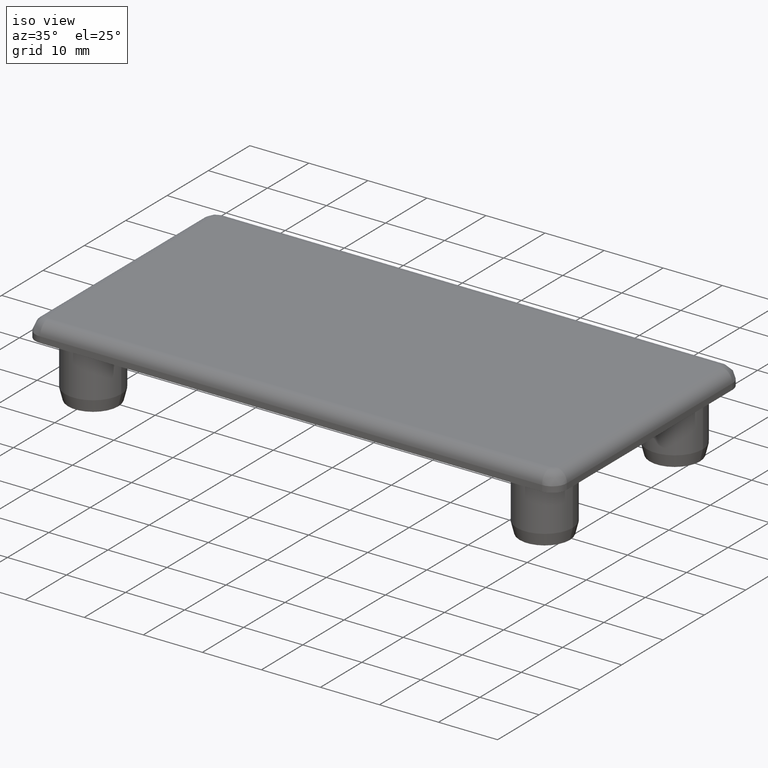
[diagram: clean part render]
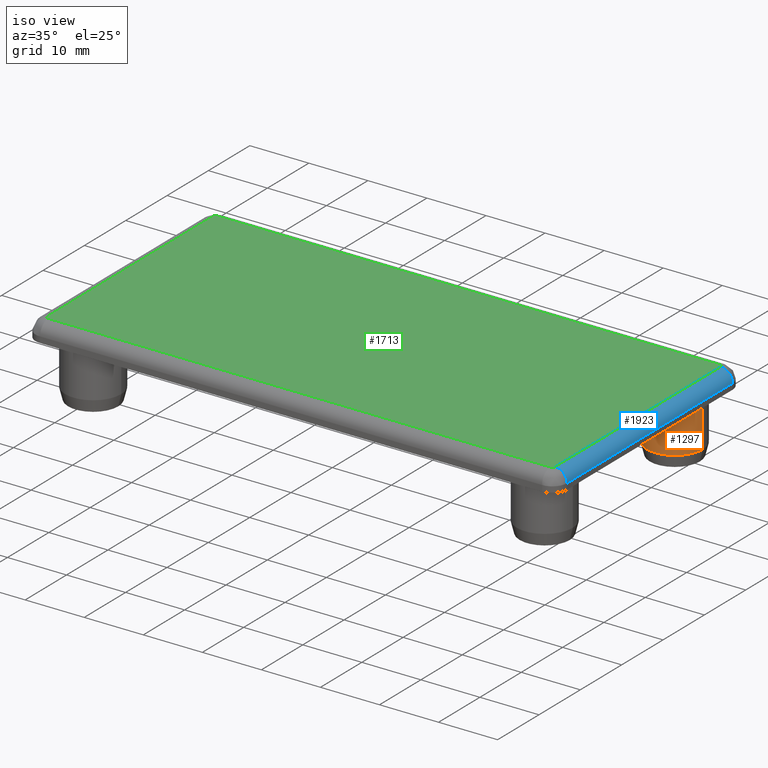
[diagram: same view with three faces highlighted in distinct colors, each labeled with its STEP entity id]
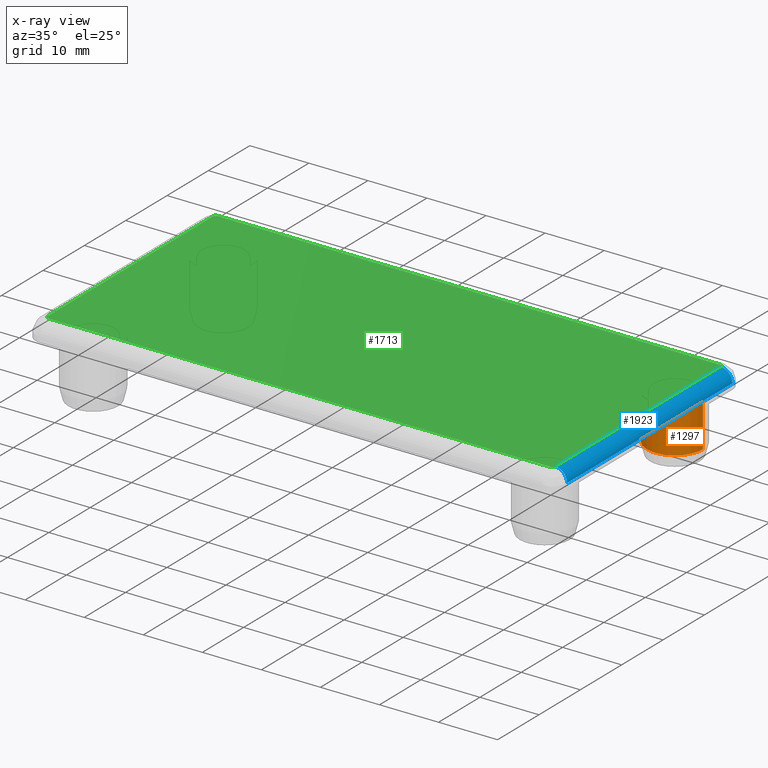
[diagram: x-ray of the same camera — body ghosted, the three highlighted faces saturated]
A machine part, iso view with three faces highlighted in distinct colors.
The next image is the same camera in x-ray (body ghosted, the three faces saturated) — at least one of them is partly hidden behind the body in this view.
Their STEP definitions:

[orange] entity #1297 — the highlighted cylindrical surface (edge-blend (fillet) strip) has radius 4.75 mm, axis along (0, 0, 1).
#753=CARTESIAN_POINT('',(33.480000000000004,38.229999999999997,-0.500000000000004));
#754=VERTEX_POINT('',#753);
#755=CARTESIAN_POINT('',(42.979999999999997,38.229999999999997,-0.500000000000004));
#756=VERTEX_POINT('',#755);
#1181=CARTESIAN_POINT('',(42.979999999999997,38.229999999999997,-8.000000000000004));
#1182=VERTEX_POINT('',#1181);
#1189=CARTESIAN_POINT('',(33.480000000000004,38.229999999999997,-8.000000000000004));
#1190=VERTEX_POINT('',#1189);
#1191=CARTESIAN_POINT('',(38.229999999999997,38.229999999999997,-8.000000000000004));
#1192=DIRECTION('',(0.0,1.224647E-016,1.0));
#1193=DIRECTION('',(1.0,0.0,0.0));
#1194=AXIS2_PLACEMENT_3D('',#1191,#1192,#1193);
#1195=CIRCLE('',#1194,4.749999999999997);
#1196=EDGE_CURVE('',#1190,#1182,#1195,.T.);
#1270=CARTESIAN_POINT('',(38.229999999999997,38.229999999999997,-8.000000010000004));
#1271=DIRECTION('',(0.0,1.224647E-016,1.0));
#1272=DIRECTION('',(0.0,1.0,-1.224647E-016));
#1273=AXIS2_PLACEMENT_3D('',#1270,#1271,#1272);
#1274=CYLINDRICAL_SURFACE('',#1273,4.749999999999997);
#1275=ORIENTED_EDGE('',*,*,#1196,.T.);
#1276=CARTESIAN_POINT('',(42.979999999999997,38.229999999999997,-8.000000000000004));
#1277=DIRECTION('',(0.0,0.0,1.0));
#1278=VECTOR('',#1277,7.500000000000000);
#1279=LINE('',#1276,#1278);
#1280=EDGE_CURVE('',#1182,#756,#1279,.T.);
#1281=ORIENTED_EDGE('',*,*,#1280,.T.);
#1282=CARTESIAN_POINT('',(38.229999999999997,38.229999999999997,-0.500000000000004));
#1283=DIRECTION('',(0.0,-1.224647E-016,-1.0));
#1284=DIRECTION('',(1.0,0.0,0.0));
#1285=AXIS2_PLACEMENT_3D('',#1282,#1283,#1284);
#1286=CIRCLE('',#1285,4.749999999999997);
#1287=EDGE_CURVE('',#756,#754,#1286,.T.);
#1288=ORIENTED_EDGE('',*,*,#1287,.T.);
#1289=CARTESIAN_POINT('',(33.480000000000004,38.229999999999997,-8.000000000000004));
#1290=DIRECTION('',(0.0,0.0,1.0));
#1291=VECTOR('',#1290,7.500000000000000);
#1292=LINE('',#1289,#1291);
#1293=EDGE_CURVE('',#1190,#754,#1292,.T.);
#1294=ORIENTED_EDGE('',*,*,#1293,.F.);
#1295=EDGE_LOOP('',(#1275,#1281,#1288,#1294));
#1296=FACE_OUTER_BOUND('',#1295,.T.);
#1297=ADVANCED_FACE('',(#1296),#1274,.T.);

[blue] entity #1923 — the highlighted cylindrical surface (edge-blend (fillet) strip) has radius 2 mm, axis along (0, -1, 0).
#1553=CARTESIAN_POINT('',(45.0,42.499999999999993,0.999999999999995));
#1554=VERTEX_POINT('',#1553);
#1578=CARTESIAN_POINT('',(44.999999999999993,2.500000000000000,1.0));
#1579=VERTEX_POINT('',#1578);
#1580=CARTESIAN_POINT('',(44.999999999999993,42.499999999999993,0.999999999999995));
#1581=DIRECTION('',(0.0,-1.0,0.0));
#1582=VECTOR('',#1581,40.0);
#1583=LINE('',#1580,#1582);
#1584=EDGE_CURVE('',#1554,#1579,#1583,.T.);
#1662=CARTESIAN_POINT('',(42.999999999999993,2.500000000000000,3.0));
#1663=VERTEX_POINT('',#1662);
#1671=CARTESIAN_POINT('',(43.0,42.499999999999993,2.999999999999995));
#1672=VERTEX_POINT('',#1671);
#1673=CARTESIAN_POINT('',(42.999999999999993,2.500000000000000,3.0));
#1674=DIRECTION('',(0.0,1.0,0.0));
#1675=VECTOR('',#1674,40.0);
#1676=LINE('',#1673,#1675);
#1677=EDGE_CURVE('',#1663,#1672,#1676,.T.);
#1811=CARTESIAN_POINT('',(43.0,42.499999999999993,0.999999999999995));
#1812=DIRECTION('',(0.0,-1.0,1.224647E-016));
#1813=DIRECTION('',(0.0,-1.224647E-016,-1.0));
#1814=AXIS2_PLACEMENT_3D('',#1811,#1812,#1813);
#1815=CIRCLE('',#1814,2.0);
#1816=EDGE_CURVE('',#1554,#1672,#1815,.T.);
#1906=CARTESIAN_POINT('',(42.999999999999993,42.500000009999994,0.999999999999995));
#1907=DIRECTION('',(0.0,-1.0,1.224647E-016));
#1908=DIRECTION('',(0.0,-1.224647E-016,-1.0));
#1909=AXIS2_PLACEMENT_3D('',#1906,#1907,#1908);
#1910=CYLINDRICAL_SURFACE('',#1909,2.0);
#1911=ORIENTED_EDGE('',*,*,#1816,.T.);
#1912=ORIENTED_EDGE('',*,*,#1677,.F.);
#1913=CARTESIAN_POINT('',(42.999999999999993,2.500000000000000,1.000000000000000));
#1914=DIRECTION('',(0.0,-1.0,1.224647E-016));
#1915=DIRECTION('',(0.0,-1.224647E-016,-1.0));
#1916=AXIS2_PLACEMENT_3D('',#1913,#1914,#1915);
#1917=CIRCLE('',#1916,2.0);
#1918=EDGE_CURVE('',#1579,#1663,#1917,.T.);
#1919=ORIENTED_EDGE('',*,*,#1918,.F.);
#1920=ORIENTED_EDGE('',*,*,#1584,.F.);
#1921=EDGE_LOOP('',(#1911,#1912,#1919,#1920));
#1922=FACE_OUTER_BOUND('',#1921,.T.);
#1923=ADVANCED_FACE('',(#1922),#1910,.T.);

[green] entity #1713 — the highlighted planar face has unit normal (0, 0, -1).
#1638=CARTESIAN_POINT('',(-47.299999999999990,45.049999999999983,2.999999999999995));
#1639=DIRECTION('',(0.0,0.0,-1.0));
#1640=DIRECTION('',(1.0,0.0,0.0));
#1641=AXIS2_PLACEMENT_3D('',#1638,#1639,#1640);
#1642=PLANE('',#1641);
#1643=CARTESIAN_POINT('',(-42.999999999999993,2.500000000000000,3.0));
#1644=VERTEX_POINT('',#1643);
#1645=CARTESIAN_POINT('',(-42.499999999999993,2.0,3.0));
#1646=VERTEX_POINT('',#1645);
#1647=CARTESIAN_POINT('',(-42.499999999999993,2.500000000000000,3.0));
#1648=DIRECTION('',(0.0,1.224647E-016,1.0));
#1649=DIRECTION('',(1.0,0.0,0.0));
#1650=AXIS2_PLACEMENT_3D('',#1647,#1648,#1649);
#1651=CIRCLE('',#1650,0.500000000000001);
#1652=EDGE_CURVE('',#1644,#1646,#1651,.T.);
#1653=ORIENTED_EDGE('',*,*,#1652,.T.);
#1654=CARTESIAN_POINT('',(42.500000000000000,2.0,3.0));
#1655=VERTEX_POINT('',#1654);
#1656=CARTESIAN_POINT('',(-42.499999999999993,2.0,3.0));
#1657=DIRECTION('',(1.0,0.0,0.0));
#1658=VECTOR('',#1657,85.0);
#1659=LINE('',#1656,#1658);
#1660=EDGE_CURVE('',#1646,#1655,#1659,.T.);
#1661=ORIENTED_EDGE('',*,*,#1660,.T.);
#1662=CARTESIAN_POINT('',(42.999999999999993,2.500000000000000,3.0));
#1663=VERTEX_POINT('',#1662);
#1664=CARTESIAN_POINT('',(42.499999999999993,2.500000000000000,3.0));
#1665=DIRECTION('',(0.0,1.224647E-016,1.0));
#1666=DIRECTION('',(1.0,0.0,0.0));
#1667=AXIS2_PLACEMENT_3D('',#1664,#1665,#1666);
#1668=CIRCLE('',#1667,0.500000000000001);
#1669=EDGE_CURVE('',#1655,#1663,#1668,.T.);
#1670=ORIENTED_EDGE('',*,*,#1669,.T.);
#1671=CARTESIAN_POINT('',(43.0,42.499999999999993,2.999999999999995));
#1672=VERTEX_POINT('',#1671);
#1673=CARTESIAN_POINT('',(42.999999999999993,2.500000000000000,3.0));
#1674=DIRECTION('',(0.0,1.0,0.0));
#1675=VECTOR('',#1674,40.0);
#1676=LINE('',#1673,#1675);
#1677=EDGE_CURVE('',#1663,#1672,#1676,.T.);
#1678=ORIENTED_EDGE('',*,*,#1677,.T.);
#1679=CARTESIAN_POINT('',(42.500000000000000,42.999999999999993,2.999999999999995));
#1680=VERTEX_POINT('',#1679);
#1681=CARTESIAN_POINT('',(42.500000000000000,42.499999999999993,2.999999999999995));
#1682=DIRECTION('',(0.0,1.224647E-016,1.0));
#1683=DIRECTION('',(1.0,0.0,0.0));
#1684=AXIS2_PLACEMENT_3D('',#1681,#1682,#1683);
#1685=CIRCLE('',#1684,0.500000000000001);
#1686=EDGE_CURVE('',#1672,#1680,#1685,.T.);
#1687=ORIENTED_EDGE('',*,*,#1686,.T.);
#1688=CARTESIAN_POINT('',(-42.499999999999993,42.999999999999993,2.999999999999995));
#1689=VERTEX_POINT('',#1688);
#1690=CARTESIAN_POINT('',(42.500000000000007,42.999999999999993,2.999999999999995));
#1691=DIRECTION('',(-1.0,0.0,0.0));
#1692=VECTOR('',#1691,85.0);
#1693=LINE('',#1690,#1692);
#1694=EDGE_CURVE('',#1680,#1689,#1693,.T.);
#1695=ORIENTED_EDGE('',*,*,#1694,.T.);
#1696=CARTESIAN_POINT('',(-42.999999999999993,42.499999999999993,2.999999999999995));
#1697=VERTEX_POINT('',#1696);
#1698=CARTESIAN_POINT('',(-42.499999999999993,42.499999999999993,2.999999999999995));
#1699=DIRECTION('',(0.0,1.224647E-016,1.0));
#1700=DIRECTION('',(1.0,0.0,0.0));
#1701=AXIS2_PLACEMENT_3D('',#1698,#1699,#1700);
#1702=CIRCLE('',#1701,0.500000000000001);
#1703=EDGE_CURVE('',#1689,#1697,#1702,.T.);
#1704=ORIENTED_EDGE('',*,*,#1703,.T.);
#1705=CARTESIAN_POINT('',(-42.999999999999993,42.499999999999986,2.999999999999995));
#1706=DIRECTION('',(0.0,-1.0,0.0));
#1707=VECTOR('',#1706,39.999999999999986);
#1708=LINE('',#1705,#1707);
#1709=EDGE_CURVE('',#1697,#1644,#1708,.T.);
#1710=ORIENTED_EDGE('',*,*,#1709,.T.);
#1711=EDGE_LOOP('',(#1653,#1661,#1670,#1678,#1687,#1695,#1704,#1710));
#1712=FACE_OUTER_BOUND('',#1711,.T.);
#1713=ADVANCED_FACE('',(#1712),#1642,.F.);